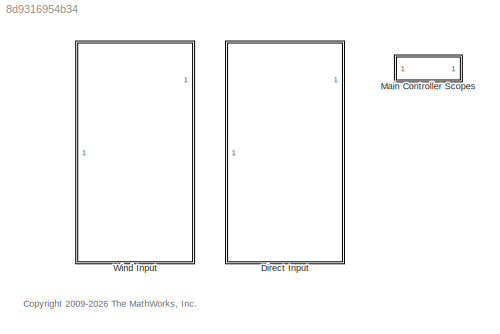
MODEL slx_8d9316954b34
KIND library
CONFIG EnableMultiTasking = on
CONFIG SolverName = ode45
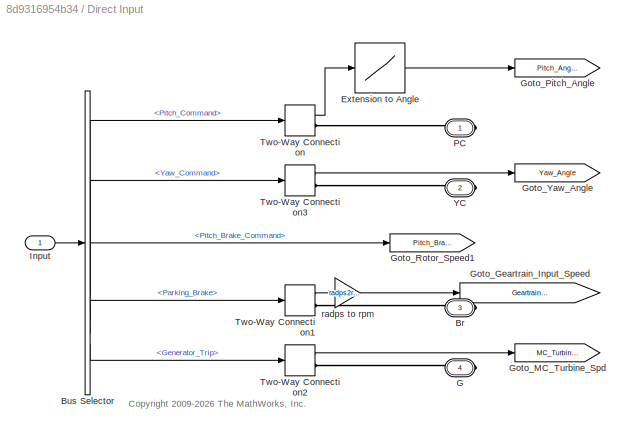
BLOCK [SubSystem] Direct Input
BLOCK [PMIOPort] Direct Input/Br
  Port = 3
  Side = Right
  Tag = PMCPort
BLOCK [BusSelector] Direct Input/Bus Selector
  OutputSignals = Pitch_Command,Yaw_Command,Pitch_Brake_Command,Parking_Brake,Generator_Trip
BLOCK [Lookup] Direct Input/Extension to Angle
  InputValues = Actuator_Lookup.extension
  SaturateOnIntegerOverflow = off
  Table = Actuator_Lookup.angle
BLOCK [PMIOPort] Direct Input/G
  Port = 4
  Side = Right
  Tag = PMCPort
BLOCK [Goto] Direct Input/Goto_Geartrain_Input_Speed
  GotoTag = Geartrain_Input_Speed
  TagVisibility = global
BLOCK [Goto] Direct Input/Goto_MC_Turbine_Spd
  GotoTag = MC_Turbine_Spd
  TagVisibility = global
BLOCK [Goto] Direct Input/Goto_Pitch_Angle
  GotoTag = Pitch_Angle
  TagVisibility = global
BLOCK [Goto] Direct Input/Goto_Rotor_Speed1
  GotoTag = Pitch_Brake
  TagVisibility = global
BLOCK [Goto] Direct Input/Goto_Yaw_Angle
  GotoTag = Yaw_Angle
  TagVisibility = global
BLOCK [Inport] Direct Input/Input
BLOCK [PMIOPort] Direct Input/PC
  Side = Right
  Tag = PMCPort
BLOCK [TwoWayConnection] Direct Input/Two-Way Connection
BLOCK [TwoWayConnection] Direct Input/Two-Way Connection1
BLOCK [TwoWayConnection] Direct Input/Two-Way Connection2
  NameLocation = top
BLOCK [TwoWayConnection] Direct Input/Two-Way Connection3
BLOCK [PMIOPort] Direct Input/YC
  Port = 2
  Side = Right
  Tag = PMCPort
BLOCK [Gain] Direct Input/radps to rpm
  Gain = radps2rpm
  NameLocation = top
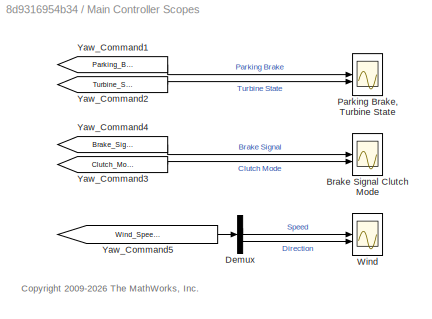
BLOCK [SubSystem] Main Controller Scopes
BLOCK [Scope] Main Controller Scopes/Brake Signal Clutch Mode
  ActiveDisplayYMaximum = 1
  ActiveDisplayYMinimum = -1
  DataLoggingDecimateData = on
  DataLoggingDecimation = 1
  DataLoggingSaveFormat = Structure With Time
  DataLoggingVariableName = ScopeData9
  Floating = off
  GraphicalSettings = {"GraphicalSettings":{"LegacySettings":true,"Style":{"AxesScalingProperties":{"ScaleAxesLimitsAtStop":false},"Style":{"AxesColor":"[0 0 0]","ChannelNames":["",""],"ColorOrder":"[1 0.909803921568627 0.392156862745098;0.149019607843137 0.549019607843137 0.866666666666667;0.96078431372549 0.466666666666667 0.16078431372549;0.286274509803922 0.858823529411765 0.250980392156863;0.752941176470588 0.3607...<+519ch>  <repeated x3 — deduplicated; at blocks: Brake Signal Clutch Mode, Parking Brake, Turbine State, Wind>
  LayoutDimensionsString = [2 1]
  MultipleDisplayCache = [{"MaxYLimMag":10,"MaxYLimReal":1,"MinYLimMag":0,"MinYLimReal":-1,"PlotAsMagnitudePhase":false,"ShowGrid":true,"ShowLegend":false,"Title":"%<SignalLabel>","YLabel":""},{"MaxYLimMag":10,"MaxYLimReal":3,"MinYLimMag":0,"MinYLimReal":1,"PlotAsMagnitudePhase":false,"ShowGrid":true,"ShowLegend":false,"Title":"%<SignalLabel>","YLabel":""}]
  NumInputPorts = 2
  TimeSpan = 80
  WasSavedAsWebScope = on
  WindowPosition = [842 542 323 236]
BLOCK [Demux] Main Controller Scopes/Demux
  Outputs = 2
BLOCK [Scope] Main Controller Scopes/Parking Brake, Turbine State
  ActiveDisplayYMaximum = 1
  ActiveDisplayYMinimum = 0
  DataLoggingDecimateData = on
  DataLoggingDecimation = 1
  DataLoggingSaveFormat = Structure With Time
  DataLoggingVariableName = ScopeData7
  Floating = off
  LayoutDimensionsString = [2 1]
  MultipleDisplayCache = [{"MaxYLimMag":10,"MaxYLimReal":1,"MinYLimMag":0,"MinYLimReal":0,"PlotAsMagnitudePhase":false,"ShowGrid":true,"ShowLegend":false,"Title":"%<SignalLabel>","YLabel":""},{"MaxYLimMag":10,"MaxYLimReal":3,"MinYLimMag":0,"MinYLimReal":0,"PlotAsMagnitudePhase":false,"ShowGrid":true,"ShowLegend":false,"Title":"%<SignalLabel>","YLabel":""}]
  NumInputPorts = 2
  TimeSpan = 80
  WasSavedAsWebScope = on
  WindowPosition = [842 406 715 372]
BLOCK [Scope] Main Controller Scopes/Wind
  ActiveDisplayYMaximum = 20
  ActiveDisplayYMinimum = 0
  DataLogging = on
  DataLoggingDecimateData = on
  DataLoggingDecimation = 1
  DataLoggingSaveFormat = Structure With Time
  DataLoggingVariableName = Wind_Turbine_Wind_DATA
  Floating = off
  LayoutDimensionsString = [2 1]
  MultipleDisplayCache = [{"MaxYLimMag":10,"MaxYLimReal":20,"MinYLimMag":0,"MinYLimReal":0,"PlotAsMagnitudePhase":false,"ShowGrid":true,"ShowLegend":false,"Title":"%<SignalLabel>","YLabel":""},{"MaxYLimMag":10,"MaxYLimReal":5,"MinYLimMag":0,"MinYLimReal":-5,"PlotAsMagnitudePhase":false,"ShowGrid":true,"ShowLegend":false,"Title":"%<SignalLabel>","YLabel":""}]
  NumInputPorts = 2
  TimeSpan = 80
  WasSavedAsWebScope = on
  WindowPosition = [842 593 594 185]
BLOCK [From] Main Controller Scopes/Yaw_Command1
  CloseFcn = tagdialog Close
  GotoTag = Parking_Brake
BLOCK [From] Main Controller Scopes/Yaw_Command2
  CloseFcn = tagdialog Close
  GotoTag = Turbine_State
BLOCK [From] Main Controller Scopes/Yaw_Command3
  CloseFcn = tagdialog Close
  GotoTag = Clutch_Mode
BLOCK [From] Main Controller Scopes/Yaw_Command4
  CloseFcn = tagdialog Close
  GotoTag = Brake_Signal
BLOCK [From] Main Controller Scopes/Yaw_Command5
  CloseFcn = tagdialog Close
  GotoTag = Wind_Speed_Direction
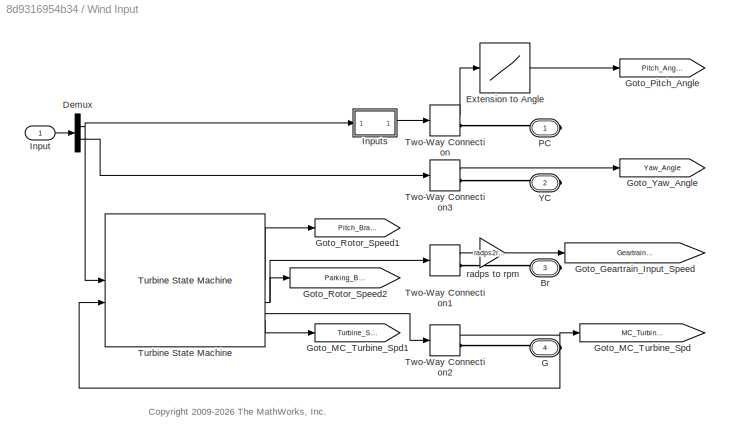
BLOCK [SubSystem] Wind Input
BLOCK [PMIOPort] Wind Input/Br
  Port = 3
  Side = Right
  Tag = PMCPort
BLOCK [Demux] Wind Input/Demux
  Outputs = 2
BLOCK [Lookup] Wind Input/Extension to Angle
  InputValues = Actuator_Lookup.extension
  SaturateOnIntegerOverflow = off
  Table = Actuator_Lookup.angle
BLOCK [PMIOPort] Wind Input/G
  Port = 4
  Side = Right
  Tag = PMCPort
BLOCK [Goto] Wind Input/Goto_Geartrain_Input_Speed
  GotoTag = Geartrain_Input_Speed
  TagVisibility = global
BLOCK [Goto] Wind Input/Goto_MC_Turbine_Spd
  GotoTag = MC_Turbine_Spd
  TagVisibility = global
BLOCK [Goto] Wind Input/Goto_MC_Turbine_Spd1
  GotoTag = Turbine_State
  TagVisibility = global
BLOCK [Goto] Wind Input/Goto_Pitch_Angle
  GotoTag = Pitch_Angle
  TagVisibility = global
BLOCK [Goto] Wind Input/Goto_Rotor_Speed1
  GotoTag = Pitch_Brake
  TagVisibility = global
BLOCK [Goto] Wind Input/Goto_Rotor_Speed2
  GotoTag = Parking_Brake
  TagVisibility = global
BLOCK [Goto] Wind Input/Goto_Yaw_Angle
  GotoTag = Yaw_Angle
  TagVisibility = global
BLOCK [Inport] Wind Input/Input
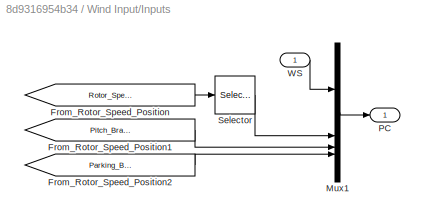
BLOCK [SubSystem] Wind Input/Inputs
BLOCK [From] Wind Input/Inputs/From_Rotor_Speed_Position
  CloseFcn = tagdialog Close
  GotoTag = Rotor_Speed_Position
  TagVisibility = global
BLOCK [From] Wind Input/Inputs/From_Rotor_Speed_Position1
  CloseFcn = tagdialog Close
  GotoTag = Pitch_Brake
  TagVisibility = global
BLOCK [From] Wind Input/Inputs/From_Rotor_Speed_Position2
  CloseFcn = tagdialog Close
  GotoTag = Parking_Brake
  TagVisibility = global
BLOCK [Mux] Wind Input/Inputs/Mux1
  DisplayOption = bar
BLOCK [Outport] Wind Input/Inputs/PC
  VectorParamsAs1DForOutWhenUnconnected = off
BLOCK [Selector] Wind Input/Inputs/Selector
  IndexOptions = Index vector (dialog)
  Indices = [2]
  InputPortWidth = 2
  OutputSizes = 1
BLOCK [Inport] Wind Input/Inputs/WS
BLOCK [PMIOPort] Wind Input/PC
  Side = Right
  Tag = PMCPort
BLOCK [Reference] Wind Input/Turbine State Machine  REF=Turbine_State_Machine_Lib/Turbine State Machine
  SourceBlock = Turbine_State_Machine_Lib/Turbine State Machine
  SourceType = SubSystem
BLOCK [TwoWayConnection] Wind Input/Two-Way Connection
BLOCK [TwoWayConnection] Wind Input/Two-Way Connection1
BLOCK [TwoWayConnection] Wind Input/Two-Way Connection2
  NameLocation = top
BLOCK [TwoWayConnection] Wind Input/Two-Way Connection3
BLOCK [PMIOPort] Wind Input/YC
  Port = 2
  Side = Right
  Tag = PMCPort
BLOCK [Gain] Wind Input/radps to rpm
  Gain = radps2rpm
  NameLocation = top
ANNOTATION (root): <copyright redacted>
ANNOTATION Direct Input: <copyright redacted>
ANNOTATION Main Controller Scopes: <copyright redacted>
ANNOTATION Wind Input: <copyright redacted>
LINE Direct Input/Bus Selector:1 -> Direct Input/Two-Way Connection:1
LINE Direct Input/Bus Selector:2 -> Direct Input/Two-Way Connection3:1
LINE Direct Input/Bus Selector:3 -> Direct Input/Goto_Rotor_Speed1:1
LINE Direct Input/Bus Selector:4 -> Direct Input/Two-Way Connection1:1
LINE Direct Input/Bus Selector:5 -> Direct Input/Two-Way Connection2:1
LINE Direct Input/Extension to Angle:1 -> Direct Input/Goto_Pitch_Angle:1
LINE Direct Input/Input:1 -> Direct Input/Bus Selector:1
LINE Direct Input/Two-Way Connection1:1 -> Direct Input/radps to rpm:1
LINE Direct Input/Two-Way Connection2:1 -> Direct Input/Goto_MC_Turbine_Spd:1
LINE Direct Input/Two-Way Connection3:1 -> Direct Input/Goto_Yaw_Angle:1
LINE Direct Input/Two-Way Connection:1 -> Direct Input/Extension to Angle:1
LINE Direct Input/radps to rpm:1 -> Direct Input/Goto_Geartrain_Input_Speed:1
LINE Main Controller Scopes/Demux:1 -> Main Controller Scopes/Wind:1
LINE Main Controller Scopes/Demux:2 -> Main Controller Scopes/Wind:2
LINE Main Controller Scopes/Yaw_Command1:1 -> Main Controller Scopes/Parking Brake, Turbine State:1
LINE Main Controller Scopes/Yaw_Command2:1 -> Main Controller Scopes/Parking Brake, Turbine State:2
LINE Main Controller Scopes/Yaw_Command3:1 -> Main Controller Scopes/Brake Signal Clutch Mode:2
LINE Main Controller Scopes/Yaw_Command4:1 -> Main Controller Scopes/Brake Signal Clutch Mode:1
LINE Main Controller Scopes/Yaw_Command5:1 -> Main Controller Scopes/Demux:1
NET Wind Input/Demux:1 -> Wind Input/Inputs:1, Wind Input/Turbine State Machine:1
LINE Wind Input/Demux:2 -> Wind Input/Two-Way Connection3:1
LINE Wind Input/Extension to Angle:1 -> Wind Input/Goto_Pitch_Angle:1
LINE Wind Input/Input:1 -> Wind Input/Demux:1
LINE Wind Input/Inputs/From_Rotor_Speed_Position1:1 -> Wind Input/Inputs/Mux1:3
LINE Wind Input/Inputs/From_Rotor_Speed_Position2:1 -> Wind Input/Inputs/Mux1:4
LINE Wind Input/Inputs/From_Rotor_Speed_Position:1 -> Wind Input/Inputs/Selector:1
LINE Wind Input/Inputs/Mux1:1 -> Wind Input/Inputs/PC:1
LINE Wind Input/Inputs/Selector:1 -> Wind Input/Inputs/Mux1:2
LINE Wind Input/Inputs/WS:1 -> Wind Input/Inputs/Mux1:1
LINE Wind Input/Inputs:1 -> Wind Input/Two-Way Connection:1
LINE Wind Input/Turbine State Machine:1 -> Wind Input/Goto_Rotor_Speed1:1
NET Wind Input/Turbine State Machine:2 -> Wind Input/Goto_Rotor_Speed2:1, Wind Input/Two-Way Connection1:1
LINE Wind Input/Turbine State Machine:3 -> Wind Input/Two-Way Connection2:1
LINE Wind Input/Turbine State Machine:4 -> Wind Input/Goto_MC_Turbine_Spd1:1
LINE Wind Input/Two-Way Connection1:1 -> Wind Input/radps to rpm:1
NET Wind Input/Two-Way Connection2:1 -> Wind Input/Goto_MC_Turbine_Spd:1, Wind Input/Turbine State Machine:2
LINE Wind Input/Two-Way Connection3:1 -> Wind Input/Goto_Yaw_Angle:1
LINE Wind Input/Two-Way Connection:1 -> Wind Input/Extension to Angle:1
LINE Wind Input/radps to rpm:1 -> Wind Input/Goto_Geartrain_Input_Speed:1
PLINE Direct Input/Br:RConn1 -- Direct Input/Two-Way Connection1:RConn1
PLINE Direct Input/G:RConn1 -- Direct Input/Two-Way Connection2:RConn1
PLINE Direct Input/PC:RConn1 -- Direct Input/Two-Way Connection:RConn1
PLINE Direct Input/Two-Way Connection3:RConn1 -- Direct Input/YC:RConn1
PLINE Wind Input/Br:RConn1 -- Wind Input/Two-Way Connection1:RConn1
PLINE Wind Input/G:RConn1 -- Wind Input/Two-Way Connection2:RConn1
PLINE Wind Input/PC:RConn1 -- Wind Input/Two-Way Connection:RConn1
PLINE Wind Input/Two-Way Connection3:RConn1 -- Wind Input/YC:RConn1
note: NET lines group one-source signal fan-out (src -> all destinations, sorted); 1:1 wires keep LINE
